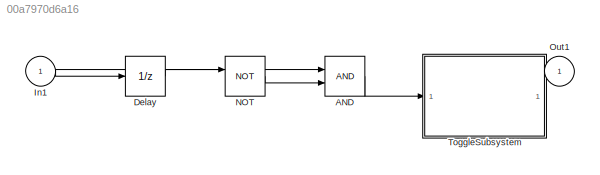
MODEL slx_00a7970d6a16
KIND model
CONFIG AbsTol = auto
CONFIG EnableMultiTasking = off
CONFIG FixedStep = auto
CONFIG MaxStep = auto
CONFIG MinStep = auto
CONFIG RelTol = 1e-3
CONFIG SampleTimeConstraint = Unconstrained
CONFIG SolverName = VariableStepAuto
CONFIG StartTime = 0.0
CONFIG StopTime = 10.0
BLOCK [Logic] AND
  AllPortsSameDT = off
  OutDataTypeStr = boolean
BLOCK [UnitDelay] Delay
  HasFrameUpgradeWarning = on
  SampleTime = -1
BLOCK [Inport] In1
BLOCK [Logic] NOT
  AllPortsSameDT = off
  Operator = NOT
  OutDataTypeStr = boolean
BLOCK [Outport] Out1
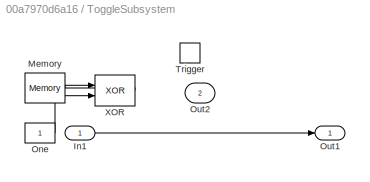
BLOCK [SubSystem] ToggleSubsystem
  TreatAsAtomicUnit = on
BLOCK [Inport] ToggleSubsystem/In1
BLOCK [Memory] ToggleSubsystem/Memory
BLOCK [Constant] ToggleSubsystem/One
BLOCK [Outport] ToggleSubsystem/Out1
BLOCK [Outport] ToggleSubsystem/Out2
  Port = 2
BLOCK [TriggerPort] ToggleSubsystem/Trigger
  StatesWhenEnabling = held
  VariantControl = (inherit)
BLOCK [Logic] ToggleSubsystem/XOR
  AllPortsSameDT = off
  Operator = XOR
  OutDataTypeStr = boolean
LINE AND:1 -> ToggleSubsystem:1
LINE Delay:1 -> NOT:1
NET In1:1 -> AND:1, Delay:1
LINE NOT:1 -> AND:2
LINE ToggleSubsystem/In1:1 -> ToggleSubsystem/Out1:1
LINE ToggleSubsystem/Memory:1 -> ToggleSubsystem/XOR:1
LINE ToggleSubsystem/One:1 -> ToggleSubsystem/XOR:2
LINE ToggleSubsystem/XOR:1 -> ToggleSubsystem/Memory:1
LINE ToggleSubsystem:1 -> Out1:1
note: NET lines group one-source signal fan-out (src -> all destinations, sorted); 1:1 wires keep LINE
